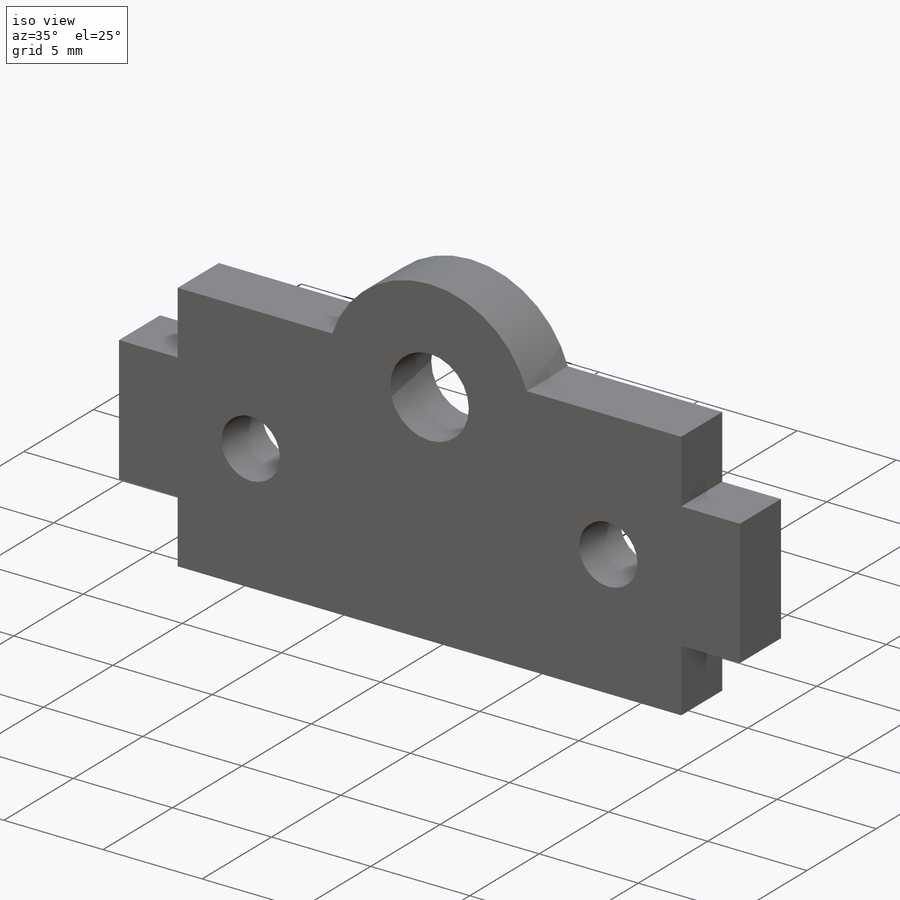
[diagram: iso view]
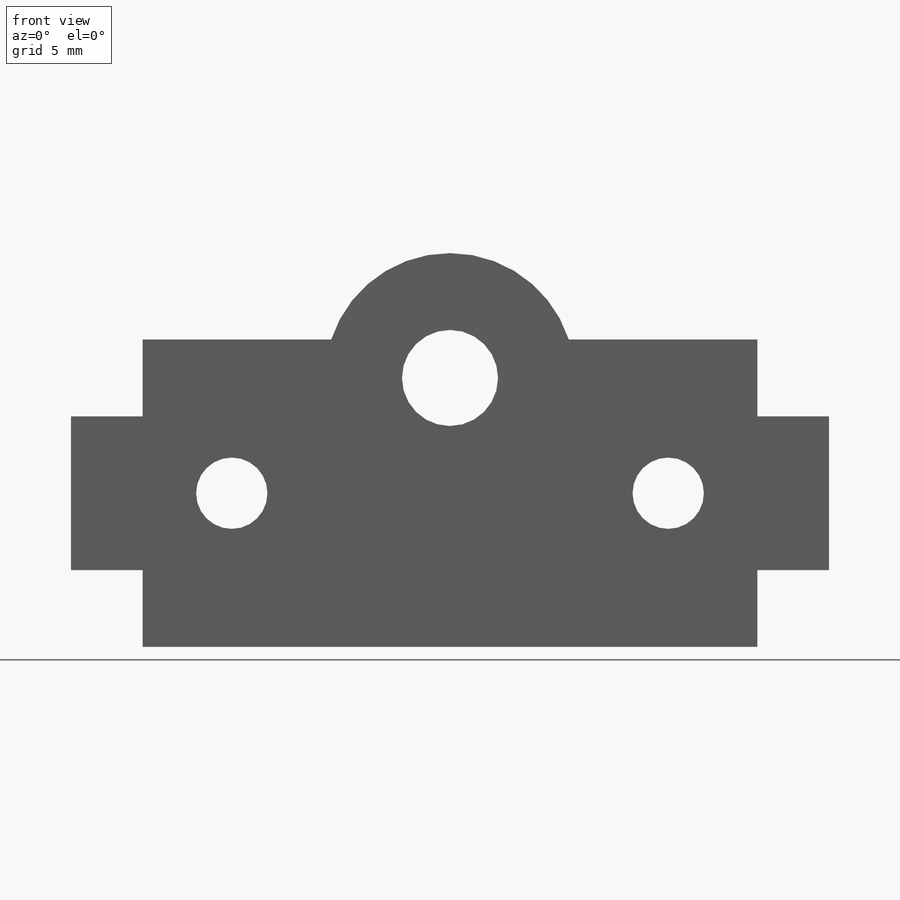
[diagram: front view]
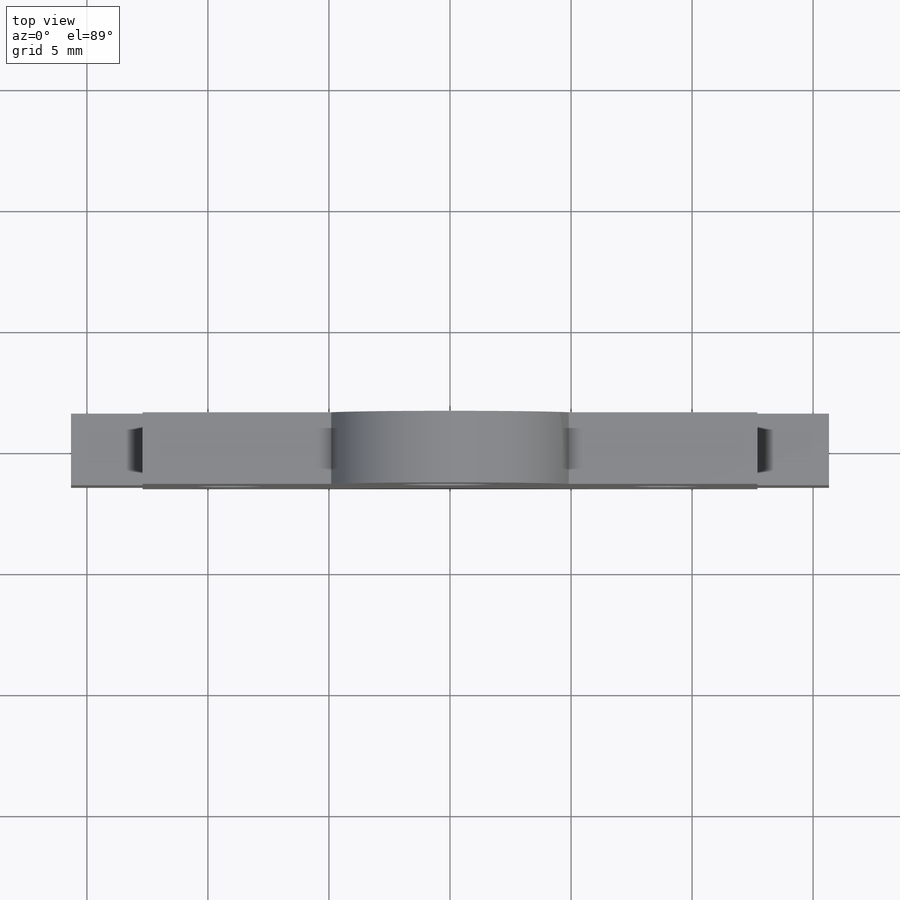
[diagram: top view]
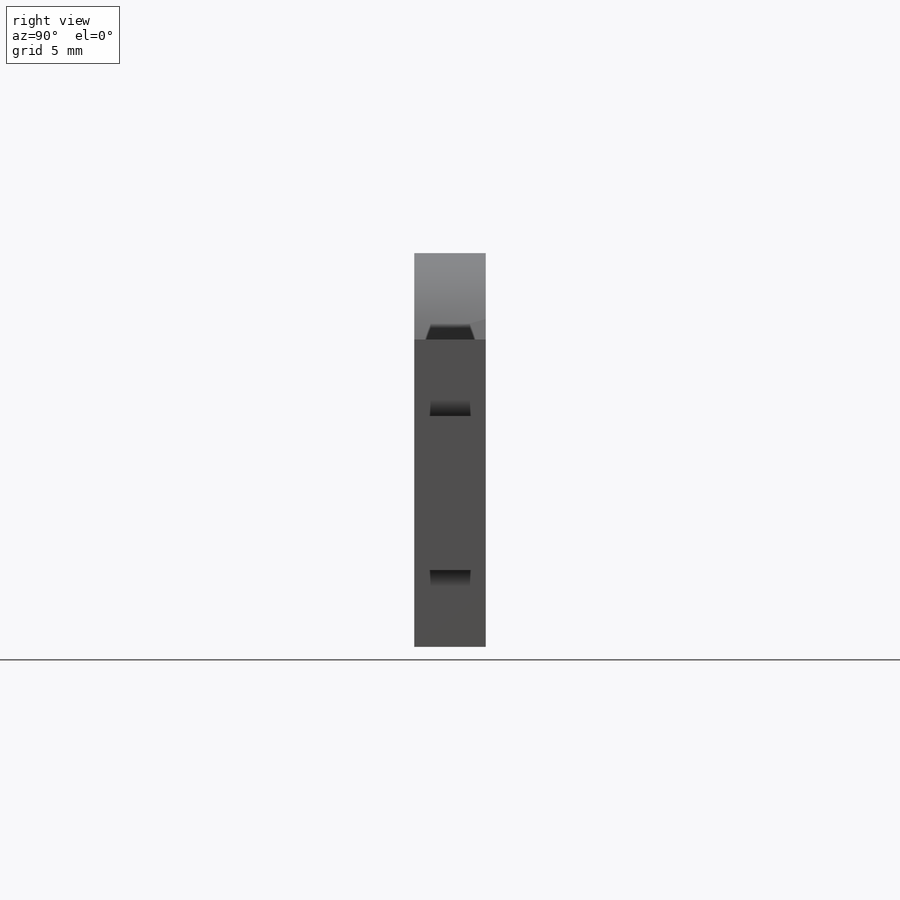
[diagram: right view]
SOLIDWORKS PART (.sldprt)
format: sldprt  version: not decoded by parser v0  size: 201,728 bytes
history: native  units: mm
features: sketch x3, material x1, extrude x1, hole x1 (+12 scaffold rows collapsed)
feature tree (18):
  scaffold x12  (default folders/planes/origin — collapsed)
  material  "Material <not specified>"
  sketch  "Sketch1"  dims[c1.D1=~3.96875mm c1.D2=3.175mm c1.D3=6.35mm c1.D4=12.7mm c1.D5=6.35mm c1.D6=9.525mm c1.D7=2.9591mm c1.D8=2.9591mm c1.D9=19.05mm c2.D3=4.7625mm c2.D9=25.4mm]
  extrude  "Boss-Extrude1"  Depth=2.9591mm
  hole  "#4 Clearance Hole1"  Diameter=2.9464mm Depth=3.302mm
  sketch  "Sketch4"  dims[D1=7.366mm D2=7.366mm]
  sketch  "Sketch3"  dims[hole-wizard template sketch: 50 standard entries collapsed; hole parameters above]
decode coverage: 5 of 5 modeling features carry decoded parameters
note: ~ marks probable driven/reference dimensions
note: suppression state not decoded; provenance and decode notes live in map.json
